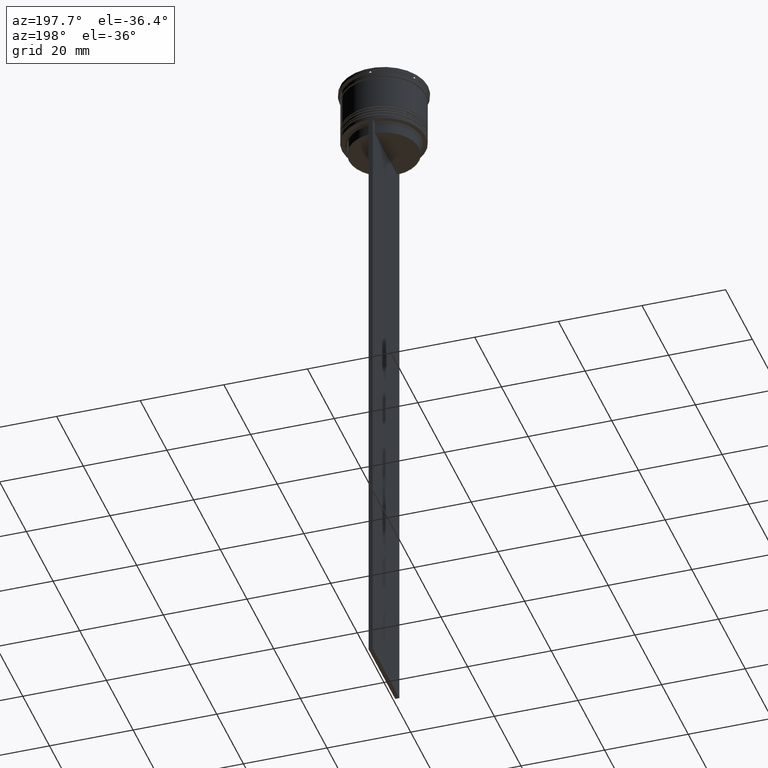
[diagram: clean part render]
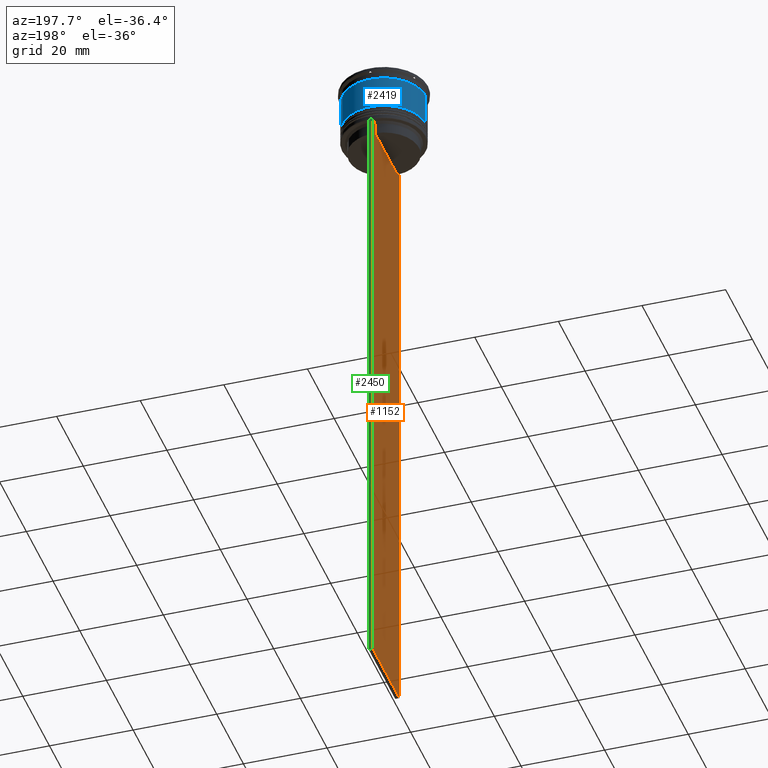
[diagram: same view with three faces highlighted in distinct colors, each labeled with its STEP entity id]
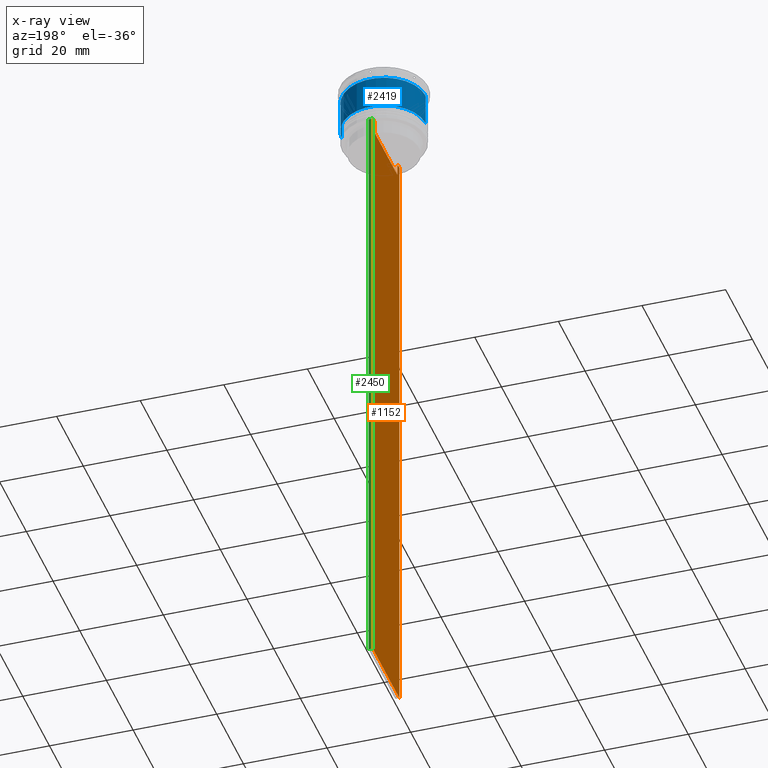
[diagram: x-ray of the same camera — body ghosted, the three highlighted faces saturated]
A machine part, auxiliary view with three faces highlighted in distinct colors.
The next image is the same camera in x-ray (body ghosted, the three faces saturated) — at least one of them is partly hidden behind the body in this view.
Their STEP definitions:

[orange] entity #1152 — the highlighted planar face has unit normal (-1, 0, 0).
#24 = EDGE_CURVE ( 'NONE', #1457, #334, #821, .T. ) ;
#184 = CARTESIAN_POINT ( 'NONE',  ( -0.5000000000000000000, -10.00000000000000178, -14.00000000000000178 ) ) ;
#213 = EDGE_CURVE ( 'NONE', #1897, #2055, #891, .T. ) ;
#224 = ORIENTED_EDGE ( 'NONE', *, *, #24, .F. ) ;
#243 = ORIENTED_EDGE ( 'NONE', *, *, #1502, .F. ) ;
#263 = ORIENTED_EDGE ( 'NONE', *, *, #2455, .F. ) ;
#265 = LINE ( 'NONE', #1095, #273 ) ;
#273 = VECTOR ( 'NONE', #892, 1000.000000000000000 ) ;
#279 = CARTESIAN_POINT ( 'NONE',  ( -0.5000000000000000000, -8.385105843100616241, -14.50000000000000000 ) ) ;
#281 = DIRECTION ( 'NONE',  ( 0.000000000000000000, 0.000000000000000000, 1.000000000000000000 ) ) ;
#293 = CARTESIAN_POINT ( 'NONE',  ( -0.5000000000000000000, -8.385105843100616241, -14.50000000000000000 ) ) ;
#322 = CARTESIAN_POINT ( 'NONE',  ( -0.5000000000000000000, -9.887365675446622149, -14.00000000000000178 ) ) ;
#334 = VERTEX_POINT ( 'NONE', #2424 ) ;
#347 = EDGE_CURVE ( 'NONE', #1298, #2087, #942, .T. ) ;
#394 = VECTOR ( 'NONE', #1519, 1000.000000000000000 ) ;
#448 = VERTEX_POINT ( 'NONE', #1023 ) ;
#473 = DIRECTION ( 'NONE',  ( 0.000000000000000000, -1.000000000000000000, 0.000000000000000000 ) ) ;
#520 = CARTESIAN_POINT ( 'NONE',  ( -0.5000000000000000000, 8.385105843100616241, -17.00000000000000000 ) ) ;
#525 = CARTESIAN_POINT ( 'NONE',  ( -0.5000000000000000000, 8.385105843100616241, -14.50000000000000000 ) ) ;
#527 = CARTESIAN_POINT ( 'NONE',  ( -0.5000000000000000000, 8.885943956609230199, -14.00000000000000178 ) ) ;
#568 = CARTESIAN_POINT ( 'NONE',  ( -0.5000000000000000000, -10.00000000000000178, -14.00000000000000178 ) ) ;
#570 = ORIENTED_EDGE ( 'NONE', *, *, #1861, .F. ) ;
#598 = DIRECTION ( 'NONE',  ( 0.000000000000000000, -1.000000000000000000, 0.000000000000000000 ) ) ;
#693 = CARTESIAN_POINT ( 'NONE',  ( -0.5000000000000000000, 8.385105843100616241, 0.000000000000000000 ) ) ;
#735 = CARTESIAN_POINT ( 'NONE',  ( -0.5000000000000000000, 8.400000000000003908, -17.00000000000000000 ) ) ;
#781 = ORIENTED_EDGE ( 'NONE', *, *, #2106, .F. ) ;
#783 = VECTOR ( 'NONE', #1957, 1000.000000000000000 ) ;
#793 = VERTEX_POINT ( 'NONE', #1545 ) ;
#821 = LINE ( 'NONE', #184, #2223 ) ;
#851 = EDGE_CURVE ( 'NONE', #2087, #1561, #2334, .T. ) ;
#864 = FACE_OUTER_BOUND ( 'NONE', #2396, .T. ) ;
#877 = VECTOR ( 'NONE', #473, 1000.000000000000000 ) ;
#891 = LINE ( 'NONE', #2363, #877 ) ;
#892 = DIRECTION ( 'NONE',  ( 0.000000000000000000, 0.000000000000000000, -1.000000000000000000 ) ) ;
#938 = DIRECTION ( 'NONE',  ( -0.000000000000000000, -0.000000000000000000, 1.000000000000000000 ) ) ;
#942 = LINE ( 'NONE', #735, #2302 ) ;
#993 = CARTESIAN_POINT ( 'NONE',  ( -0.5000000000000000000, -10.00000000000000178, -14.00000000000000178 ) ) ;
#1017 = CARTESIAN_POINT ( 'NONE',  ( -0.5000000000000000000, 8.885943956609230199, -14.00000000000000178 ) ) ;
#1023 = CARTESIAN_POINT ( 'NONE',  ( -0.5000000000000000000, -8.885943956609230199, -14.00000000000000178 ) ) ;
#1036 = ORIENTED_EDGE ( 'NONE', *, *, #347, .F. ) ;
#1095 = CARTESIAN_POINT ( 'NONE',  ( -0.5000000000000000000, 9.999999999999998224, 6.024984394500783047 ) ) ;
#1152 = ADVANCED_FACE ( 'NONE', ( #864 ), #1727, .T. ) ;
#1176 = EDGE_CURVE ( 'NONE', #1457, #793, #265, .T. ) ;
#1282 = ORIENTED_EDGE ( 'NONE', *, *, #1311, .F. ) ;
#1298 = VERTEX_POINT ( 'NONE', #520 ) ;
#1311 = EDGE_CURVE ( 'NONE', #334, #1533, #1996, .T. ) ;
#1360 = VECTOR ( 'NONE', #938, 1000.000000000000000 ) ;
#1402 = ORIENTED_EDGE ( 'NONE', *, *, #1874, .F. ) ;
#1408 = CARTESIAN_POINT ( 'NONE',  ( -0.5000000000000000000, -8.385105843100616241, -17.00000000000000000 ) ) ;
#1457 = VERTEX_POINT ( 'NONE', #2147 ) ;
#1502 = EDGE_CURVE ( 'NONE', #1561, #448, #1883, .T. ) ;
#1519 = DIRECTION ( 'NONE',  ( 0.000000000000000000, 1.000000000000000000, 0.000000000000000000 ) ) ;
#1533 = VERTEX_POINT ( 'NONE', #527 ) ;
#1535 = ORIENTED_EDGE ( 'NONE', *, *, #851, .F. ) ;
#1536 = VECTOR ( 'NONE', #2583, 1000.000000000000000 ) ;
#1540 = CARTESIAN_POINT ( 'NONE',  ( -0.5000000000000000000, -8.885943956609230199, -14.00000000000000178 ) ) ;
#1545 = CARTESIAN_POINT ( 'NONE',  ( -0.5000000000000000000, 9.999999999999998224, -163.9999999999999716 ) ) ;
#1551 = CARTESIAN_POINT ( 'NONE',  ( -0.5000000000000000000, -10.00000000000000178, -163.9999999999999716 ) ) ;
#1561 = VERTEX_POINT ( 'NONE', #279 ) ;
#1582 = AXIS2_PLACEMENT_3D ( 'NONE', #1920, #1691, #281 ) ;
#1631 = LINE ( 'NONE', #568, #2113 ) ;
#1647 = DIRECTION ( 'NONE',  ( 0.000000000000000000, -1.000000000000000000, 0.000000000000000000 ) ) ;
#1691 = DIRECTION ( 'NONE',  ( -1.000000000000000000, 0.000000000000000000, 0.000000000000000000 ) ) ;
#1727 = PLANE ( 'NONE',  #1582 ) ;
#1745 = B_SPLINE_CURVE_WITH_KNOTS ( 'NONE', 3,
 ( #1017, #1839, #2662, #2460 ),
 .UNSPECIFIED., .F., .F.,
 ( 4, 4 ),
 ( 0.01511546479386908018, 0.01582316445439079997 ),
 .UNSPECIFIED. ) ;
#1749 = CARTESIAN_POINT ( 'NONE',  ( -0.5000000000000000000, -10.00000000000000178, -14.00000000000000178 ) ) ;
#1768 = CARTESIAN_POINT ( 'NONE',  ( -0.5000000000000000000, -8.719005764482790966, -14.16667454151159689 ) ) ;
#1839 = CARTESIAN_POINT ( 'NONE',  ( -0.5000000000000000000, 8.719005771582351016, -14.16667453442324742 ) ) ;
#1861 = EDGE_CURVE ( 'NONE', #2055, #2457, #2374, .T. ) ;
#1874 = EDGE_CURVE ( 'NONE', #2457, #793, #2574, .T. ) ;
#1883 = B_SPLINE_CURVE_WITH_KNOTS ( 'NONE', 3,
 ( #293, #1976, #1768, #1540 ),
 .UNSPECIFIED., .F., .F.,
 ( 4, 4 ),
 ( 0.03898465126933132324, 0.03969388910599660342 ),
 .UNSPECIFIED. ) ;
#1885 = VERTEX_POINT ( 'NONE', #525 ) ;
#1887 = DIRECTION ( 'NONE',  ( 0.000000000000000000, 0.000000000000000000, -1.000000000000000000 ) ) ;
#1897 = VERTEX_POINT ( 'NONE', #322 ) ;
#1920 = CARTESIAN_POINT ( 'NONE',  ( -0.5000000000000000000, -10.00000000000000178, 6.024984394500783047 ) ) ;
#1926 = ORIENTED_EDGE ( 'NONE', *, *, #2074, .F. ) ;
#1957 = DIRECTION ( 'NONE',  ( 0.000000000000000000, 0.000000000000000000, -1.000000000000000000 ) ) ;
#1976 = CARTESIAN_POINT ( 'NONE',  ( -0.5000000000000000000, -8.552060194457769882, -14.33334167772667200 ) ) ;
#1996 = LINE ( 'NONE', #1749, #1536 ) ;
#2038 = VECTOR ( 'NONE', #1887, 1000.000000000000000 ) ;
#2039 = ORIENTED_EDGE ( 'NONE', *, *, #1176, .T. ) ;
#2055 = VERTEX_POINT ( 'NONE', #993 ) ;
#2074 = EDGE_CURVE ( 'NONE', #448, #1897, #1631, .T. ) ;
#2087 = VERTEX_POINT ( 'NONE', #1408 ) ;
#2106 = EDGE_CURVE ( 'NONE', #1533, #1885, #1745, .T. ) ;
#2113 = VECTOR ( 'NONE', #598, 1000.000000000000000 ) ;
#2147 = CARTESIAN_POINT ( 'NONE',  ( -0.5000000000000000000, 9.999999999999994671, -14.00000000000000178 ) ) ;
#2159 = LINE ( 'NONE', #693, #2038 ) ;
#2223 = VECTOR ( 'NONE', #1647, 1000.000000000000000 ) ;
#2302 = VECTOR ( 'NONE', #2384, 1000.000000000000000 ) ;
#2334 = LINE ( 'NONE', #2549, #1360 ) ;
#2339 = ORIENTED_EDGE ( 'NONE', *, *, #213, .F. ) ;
#2363 = CARTESIAN_POINT ( 'NONE',  ( -0.5000000000000000000, -10.00000000000000178, -14.00000000000000178 ) ) ;
#2374 = LINE ( 'NONE', #2542, #783 ) ;
#2384 = DIRECTION ( 'NONE',  ( 0.000000000000000000, -1.000000000000000000, 0.000000000000000000 ) ) ;
#2396 = EDGE_LOOP ( 'NONE', ( #781, #1282, #224, #2039, #1402, #570, #2339, #1926, #243, #1535, #1036, #263 ) ) ;
#2424 = CARTESIAN_POINT ( 'NONE',  ( -0.5000000000000000000, 9.887365675446622149, -14.00000000000000178 ) ) ;
#2455 = EDGE_CURVE ( 'NONE', #1885, #1298, #2159, .T. ) ;
#2457 = VERTEX_POINT ( 'NONE', #2516 ) ;
#2460 = CARTESIAN_POINT ( 'NONE',  ( -0.5000000000000000000, 8.385105843100616241, -14.50000000000000000 ) ) ;
#2516 = CARTESIAN_POINT ( 'NONE',  ( -0.5000000000000000000, -10.00000000000000178, -163.9999999999999716 ) ) ;
#2542 = CARTESIAN_POINT ( 'NONE',  ( -0.5000000000000000000, -10.00000000000000178, 6.024984394500783047 ) ) ;
#2549 = CARTESIAN_POINT ( 'NONE',  ( -0.5000000000000000000, -8.385105843100616241, 0.000000000000000000 ) ) ;
#2574 = LINE ( 'NONE', #1551, #394 ) ;
#2583 = DIRECTION ( 'NONE',  ( 0.000000000000000000, -1.000000000000000000, 0.000000000000000000 ) ) ;
#2662 = CARTESIAN_POINT ( 'NONE',  ( -0.5000000000000000000, 8.552060201981381837, -14.33334167021640226 ) ) ;

[blue] entity #2419 — the highlighted cylindrical surface (partial cylindrical patch) has radius 10 mm, axis along (-0, -0, 1).
#123 = VERTEX_POINT ( 'NONE', #264 ) ;
#264 = CARTESIAN_POINT ( 'NONE',  ( -9.999999999999998224, 1.224646799147353256E-15, -2.700000000000001954 ) ) ;
#319 = EDGE_CURVE ( 'NONE', #1758, #123, #449, .T. ) ;
#332 = CARTESIAN_POINT ( 'NONE',  ( 0.000000000000000000, 0.000000000000000000, -2.700000000000001954 ) ) ;
#357 = DIRECTION ( 'NONE',  ( 1.000000000000000000, 0.000000000000000000, 0.000000000000000000 ) ) ;
#449 = CIRCLE ( 'NONE', #802, 9.999999999999998224 ) ;
#466 = ORIENTED_EDGE ( 'NONE', *, *, #1033, .T. ) ;
#485 = VERTEX_POINT ( 'NONE', #2664 ) ;
#524 = LINE ( 'NONE', #2191, #1901 ) ;
#589 = CIRCLE ( 'NONE', #1193, 10.00000000000000178 ) ;
#768 = ORIENTED_EDGE ( 'NONE', *, *, #2671, .F. ) ;
#802 = AXIS2_PLACEMENT_3D ( 'NONE', #332, #1981, #357 ) ;
#857 = DIRECTION ( 'NONE',  ( -0.000000000000000000, -0.000000000000000000, 1.000000000000000000 ) ) ;
#899 = FACE_OUTER_BOUND ( 'NONE', #1742, .T. ) ;
#1022 = EDGE_CURVE ( 'NONE', #1051, #123, #2493, .T. ) ;
#1033 = EDGE_CURVE ( 'NONE', #485, #1051, #589, .T. ) ;
#1051 = VERTEX_POINT ( 'NONE', #1110 ) ;
#1087 = ORIENTED_EDGE ( 'NONE', *, *, #1022, .T. ) ;
#1110 = CARTESIAN_POINT ( 'NONE',  ( -10.00000000000000178, 1.224646799147353454E-15, -10.50000000000000000 ) ) ;
#1134 = ORIENTED_EDGE ( 'NONE', *, *, #319, .F. ) ;
#1193 = AXIS2_PLACEMENT_3D ( 'NONE', #2441, #1415, #2241 ) ;
#1250 = CARTESIAN_POINT ( 'NONE',  ( -10.00000000000000000, 1.224646799147353256E-15, 0.000000000000000000 ) ) ;
#1399 = DIRECTION ( 'NONE',  ( -0.000000000000000000, -0.000000000000000000, 1.000000000000000000 ) ) ;
#1415 = DIRECTION ( 'NONE',  ( -0.000000000000000000, -0.000000000000000000, 1.000000000000000000 ) ) ;
#1684 = CYLINDRICAL_SURFACE ( 'NONE', #2635, 10.00000000000000000 ) ;
#1735 = DIRECTION ( 'NONE',  ( 1.000000000000000000, 0.000000000000000000, 0.000000000000000000 ) ) ;
#1742 = EDGE_LOOP ( 'NONE', ( #466, #1087, #1134, #768 ) ) ;
#1758 = VERTEX_POINT ( 'NONE', #2071 ) ;
#1899 = CARTESIAN_POINT ( 'NONE',  ( 0.000000000000000000, 0.000000000000000000, 0.000000000000000000 ) ) ;
#1901 = VECTOR ( 'NONE', #2598, 1000.000000000000000 ) ;
#1968 = VECTOR ( 'NONE', #1399, 1000.000000000000000 ) ;
#1981 = DIRECTION ( 'NONE',  ( -0.000000000000000000, -0.000000000000000000, 1.000000000000000000 ) ) ;
#2071 = CARTESIAN_POINT ( 'NONE',  ( 9.999999999999998224, 0.000000000000000000, -2.700000000000001954 ) ) ;
#2191 = CARTESIAN_POINT ( 'NONE',  ( 10.00000000000000000, 0.000000000000000000, 0.000000000000000000 ) ) ;
#2241 = DIRECTION ( 'NONE',  ( 1.000000000000000000, 0.000000000000000000, 0.000000000000000000 ) ) ;
#2419 = ADVANCED_FACE ( 'NONE', ( #899 ), #1684, .T. ) ;
#2441 = CARTESIAN_POINT ( 'NONE',  ( 0.000000000000000000, 0.000000000000000000, -10.50000000000000000 ) ) ;
#2493 = LINE ( 'NONE', #1250, #1968 ) ;
#2598 = DIRECTION ( 'NONE',  ( -0.000000000000000000, -0.000000000000000000, 1.000000000000000000 ) ) ;
#2635 = AXIS2_PLACEMENT_3D ( 'NONE', #1899, #857, #1735 ) ;
#2664 = CARTESIAN_POINT ( 'NONE',  ( 10.00000000000000178, 0.000000000000000000, -10.50000000000000000 ) ) ;
#2671 = EDGE_CURVE ( 'NONE', #485, #1758, #524, .T. ) ;

[green] entity #2450 — the highlighted planar face has unit normal (0, -1, -0).
#70 = CARTESIAN_POINT ( 'NONE',  ( 0.5000000000000000000, 9.999999999999998224, -14.00000000000000178 ) ) ;
#162 = EDGE_CURVE ( 'NONE', #1457, #1953, #1525, .T. ) ;
#252 = DIRECTION ( 'NONE',  ( 1.000000000000000000, 0.000000000000000000, 0.000000000000000000 ) ) ;
#265 = LINE ( 'NONE', #1095, #273 ) ;
#273 = VECTOR ( 'NONE', #892, 1000.000000000000000 ) ;
#275 = DIRECTION ( 'NONE',  ( 0.000000000000000000, 0.000000000000000000, -1.000000000000000000 ) ) ;
#408 = VECTOR ( 'NONE', #252, 1000.000000000000000 ) ;
#771 = DIRECTION ( 'NONE',  ( 0.000000000000000000, 0.000000000000000000, -1.000000000000000000 ) ) ;
#793 = VERTEX_POINT ( 'NONE', #1545 ) ;
#892 = DIRECTION ( 'NONE',  ( 0.000000000000000000, 0.000000000000000000, -1.000000000000000000 ) ) ;
#1093 = EDGE_CURVE ( 'NONE', #1908, #793, #2320, .T. ) ;
#1095 = CARTESIAN_POINT ( 'NONE',  ( -0.5000000000000000000, 9.999999999999998224, 6.024984394500783047 ) ) ;
#1100 = EDGE_LOOP ( 'NONE', ( #2626, #2511, #1837, #2048 ) ) ;
#1176 = EDGE_CURVE ( 'NONE', #1457, #793, #265, .T. ) ;
#1280 = CARTESIAN_POINT ( 'NONE',  ( 0.5000000000000000000, 9.999999999999998224, -163.9999999999999716 ) ) ;
#1331 = PLANE ( 'NONE',  #1823 ) ;
#1457 = VERTEX_POINT ( 'NONE', #2147 ) ;
#1525 = LINE ( 'NONE', #2348, #408 ) ;
#1545 = CARTESIAN_POINT ( 'NONE',  ( -0.5000000000000000000, 9.999999999999998224, -163.9999999999999716 ) ) ;
#1823 = AXIS2_PLACEMENT_3D ( 'NONE', #1911, #2341, #275 ) ;
#1837 = ORIENTED_EDGE ( 'NONE', *, *, #2044, .T. ) ;
#1896 = VECTOR ( 'NONE', #771, 1000.000000000000000 ) ;
#1905 = DIRECTION ( 'NONE',  ( -1.000000000000000000, 0.000000000000000000, 0.000000000000000000 ) ) ;
#1908 = VERTEX_POINT ( 'NONE', #1940 ) ;
#1911 = CARTESIAN_POINT ( 'NONE',  ( 0.5000000000000000000, 9.999999999999998224, 6.024984394500783047 ) ) ;
#1940 = CARTESIAN_POINT ( 'NONE',  ( 0.5000000000000000000, 9.999999999999998224, -163.9999999999999716 ) ) ;
#1953 = VERTEX_POINT ( 'NONE', #70 ) ;
#2017 = LINE ( 'NONE', #2645, #1896 ) ;
#2044 = EDGE_CURVE ( 'NONE', #1953, #1908, #2017, .T. ) ;
#2048 = ORIENTED_EDGE ( 'NONE', *, *, #1093, .T. ) ;
#2144 = FACE_OUTER_BOUND ( 'NONE', #1100, .T. ) ;
#2147 = CARTESIAN_POINT ( 'NONE',  ( -0.5000000000000000000, 9.999999999999994671, -14.00000000000000178 ) ) ;
#2320 = LINE ( 'NONE', #1280, #2608 ) ;
#2341 = DIRECTION ( 'NONE',  ( 0.000000000000000000, -1.000000000000000000, -0.000000000000000000 ) ) ;
#2348 = CARTESIAN_POINT ( 'NONE',  ( 0.5000000000000000000, 9.999999999999998224, -14.00000000000000178 ) ) ;
#2450 = ADVANCED_FACE ( 'NONE', ( #2144 ), #1331, .F. ) ;
#2511 = ORIENTED_EDGE ( 'NONE', *, *, #162, .T. ) ;
#2608 = VECTOR ( 'NONE', #1905, 1000.000000000000000 ) ;
#2626 = ORIENTED_EDGE ( 'NONE', *, *, #1176, .F. ) ;
#2645 = CARTESIAN_POINT ( 'NONE',  ( 0.5000000000000000000, 9.999999999999998224, 6.024984394500783047 ) ) ;